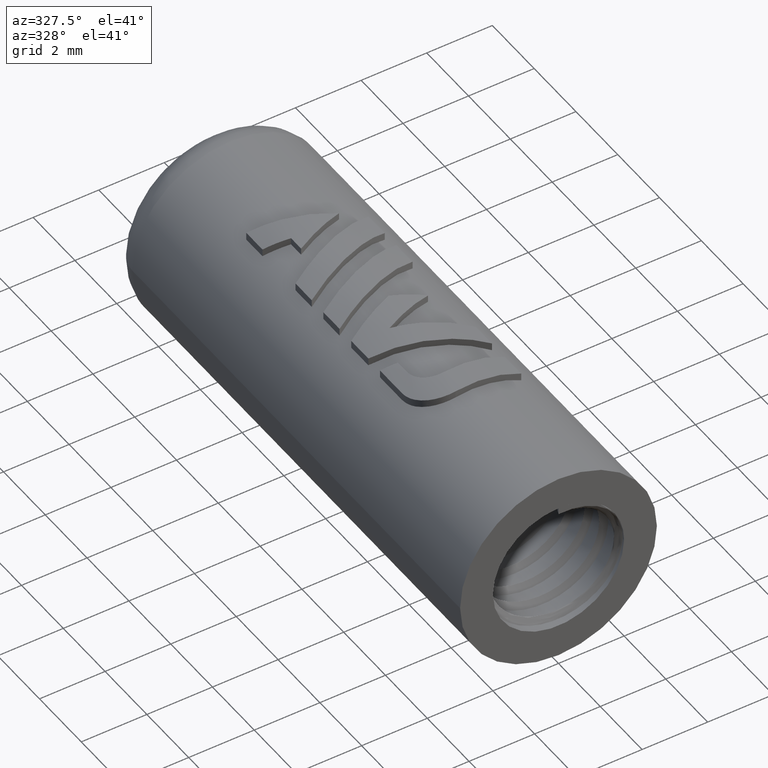
[diagram: clean part render]
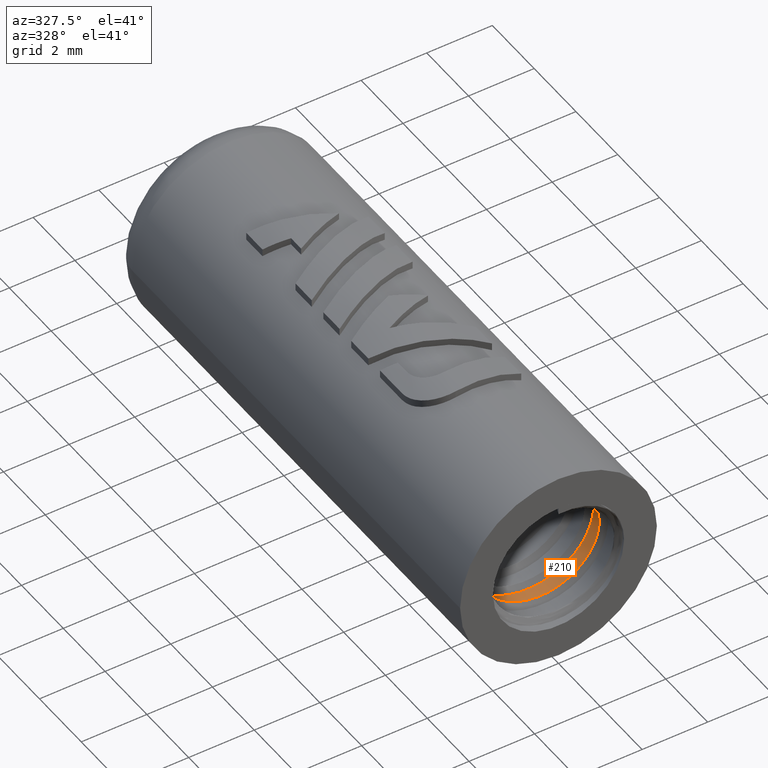
[diagram: same view with one face highlighted and labeled with its STEP entity id]
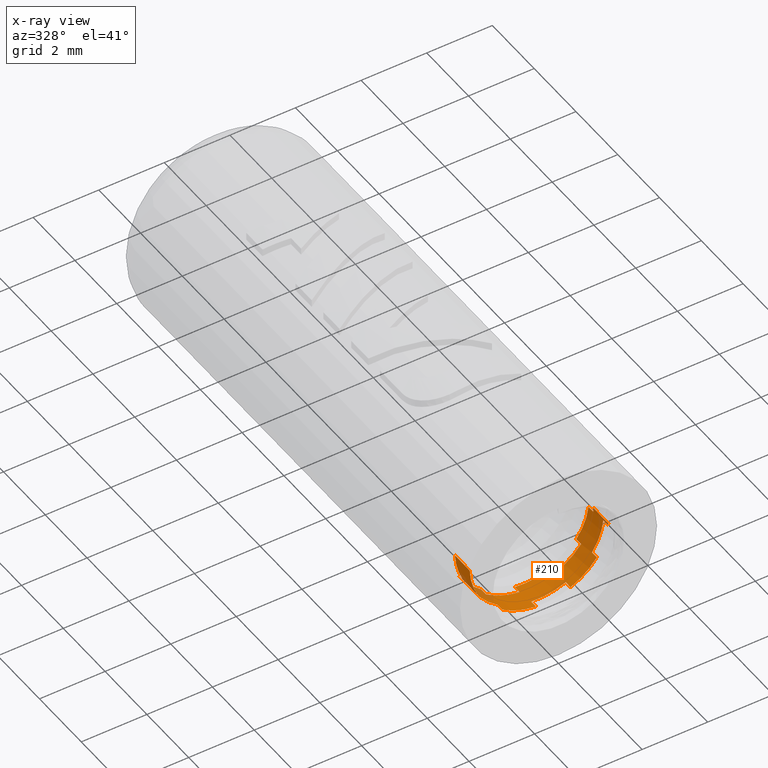
[diagram: x-ray of the same camera — body ghosted, the highlighted face saturated]
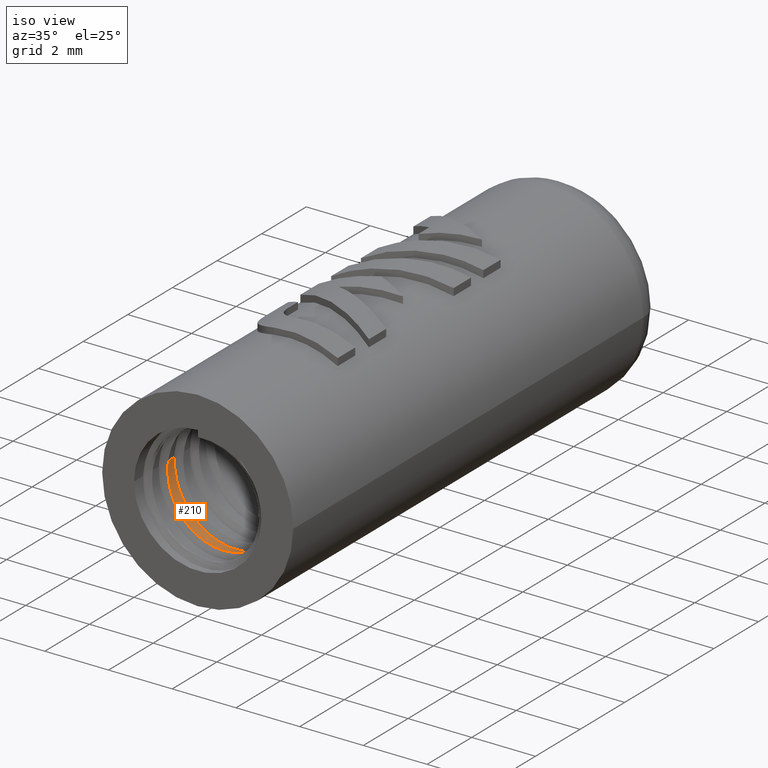
[diagram: same view with one face highlighted and labeled with its STEP entity id]
A machine part, auxiliary view. The second image highlights one B-rep face of the part: STEP entity #210.
The next image is the same camera in x-ray: the body ghosted, the highlighted face saturated — about 4% of this face is hidden behind the body in this view.
A second angle (iso view) of the same face is appended — the face is thin or edge-on in the first view.
In plain terms, the highlighted cylindrical surface (partial cylindrical patch) has radius 2 mm, axis along (-0, 1, 0).
Its self-contained STEP definition (entity closure, byte-faithful):
#210=ADVANCED_FACE('',(#702),#703,.F.);
#702=FACE_OUTER_BOUND('',#1508,.T.);
#703=CYLINDRICAL_SURFACE('',#1509,2.0);
#1508=EDGE_LOOP('',(#7086,#7087,#7088,#7089,#7090,#7091,#7092,#7093,#7094,#7095,#7096,#7097,#7098,#7099,#7100,#7101,#7102,#7103,#7104,#7105,#7106,#7107,#7108,#7109,#7110,#7111,#7112,#7113));
#1509=AXIS2_PLACEMENT_3D('',#7114,#7115,#7116);
#7086=ORIENTED_EDGE('',*,*,#9826,.F.);
#7087=ORIENTED_EDGE('',*,*,#9825,.T.);
#7088=ORIENTED_EDGE('',*,*,#9824,.F.);
#7089=ORIENTED_EDGE('',*,*,#9823,.F.);
#7090=ORIENTED_EDGE('',*,*,#9822,.T.);
#7091=ORIENTED_EDGE('',*,*,#9821,.T.);
#7092=ORIENTED_EDGE('',*,*,#9820,.F.);
#7093=ORIENTED_EDGE('',*,*,#9819,.F.);
#7094=ORIENTED_EDGE('',*,*,#9818,.T.);
#7095=ORIENTED_EDGE('',*,*,#9817,.T.);
#7096=ORIENTED_EDGE('',*,*,#9816,.F.);
#7097=ORIENTED_EDGE('',*,*,#9815,.F.);
#7098=ORIENTED_EDGE('',*,*,#9814,.T.);
#7099=ORIENTED_EDGE('',*,*,#9813,.T.);
#7100=ORIENTED_EDGE('',*,*,#9812,.F.);
#7101=ORIENTED_EDGE('',*,*,#9840,.F.);
#7102=ORIENTED_EDGE('',*,*,#9841,.F.);
#7103=ORIENTED_EDGE('',*,*,#9842,.T.);
#7104=ORIENTED_EDGE('',*,*,#9843,.T.);
#7105=ORIENTED_EDGE('',*,*,#9844,.F.);
#7106=ORIENTED_EDGE('',*,*,#9845,.F.);
#7107=ORIENTED_EDGE('',*,*,#9846,.T.);
#7108=ORIENTED_EDGE('',*,*,#9847,.T.);
#7109=ORIENTED_EDGE('',*,*,#9848,.F.);
#7110=ORIENTED_EDGE('',*,*,#9849,.F.);
#7111=ORIENTED_EDGE('',*,*,#9850,.T.);
#7112=ORIENTED_EDGE('',*,*,#9851,.T.);
#7113=ORIENTED_EDGE('',*,*,#9852,.F.);
#7114=CARTESIAN_POINT('',(0.0,0.0,0.0));
#7115=DIRECTION('',(-0.0,1.0,0.0));
#7116=DIRECTION('',(1.0,0.0,-6.12323399573677E-17));
#9812=EDGE_CURVE('',#12008,#11954,#12010,.T.);
#9813=EDGE_CURVE('',#12011,#11954,#12012,.T.);
#9814=EDGE_CURVE('',#12013,#12011,#12014,.T.);
#9815=EDGE_CURVE('',#12013,#12015,#12016,.T.);
#9816=EDGE_CURVE('',#12015,#12017,#12018,.T.);
#9817=EDGE_CURVE('',#12019,#12017,#12020,.T.);
#9818=EDGE_CURVE('',#12021,#12019,#12022,.T.);
#9819=EDGE_CURVE('',#12021,#12023,#12024,.T.);
#9820=EDGE_CURVE('',#12023,#12025,#12026,.T.);
#9821=EDGE_CURVE('',#12027,#12025,#12028,.T.);
#9822=EDGE_CURVE('',#12029,#12027,#12030,.T.);
#9823=EDGE_CURVE('',#12029,#12031,#12032,.T.);
#9824=EDGE_CURVE('',#12031,#12033,#12034,.T.);
#9825=EDGE_CURVE('',#11982,#12033,#12035,.T.);
#9826=EDGE_CURVE('',#11982,#12036,#12037,.T.);
#9840=EDGE_CURVE('',#12063,#12008,#12064,.T.);
#9841=EDGE_CURVE('',#12065,#12063,#12066,.T.);
#9842=EDGE_CURVE('',#12065,#12067,#12068,.T.);
#9843=EDGE_CURVE('',#12067,#12069,#12070,.T.);
#9844=EDGE_CURVE('',#12071,#12069,#12072,.T.);
#9845=EDGE_CURVE('',#12073,#12071,#12074,.T.);
#9846=EDGE_CURVE('',#12073,#12075,#12076,.T.);
#9847=EDGE_CURVE('',#12075,#12077,#12078,.T.);
#9848=EDGE_CURVE('',#12079,#12077,#12080,.T.);
#9849=EDGE_CURVE('',#12081,#12079,#12082,.T.);
#9850=EDGE_CURVE('',#12081,#12083,#12084,.T.);
#9851=EDGE_CURVE('',#12083,#12085,#12086,.T.);
#9852=EDGE_CURVE('',#12036,#12085,#12087,.T.);
#11954=VERTEX_POINT('',#15919);
#11982=VERTEX_POINT('',#15978);
#12008=VERTEX_POINT('',#16029);
#12010=LINE('',#16034,#16035);
#12011=VERTEX_POINT('',#16036);
#12012=B_SPLINE_CURVE_WITH_KNOTS('',3,(#16037,#16038,#16039,#16040),.UNSPECIFIED.,.F.,.F.,(4,4),(0.0,1.0),.UNSPECIFIED.);
#12013=VERTEX_POINT('',#16041);
#12014=LINE('',#16042,#16043);
#12015=VERTEX_POINT('',#16044);
#12016=B_SPLINE_CURVE_WITH_KNOTS('',3,(#16045,#16046,#16047,#16048),.UNSPECIFIED.,.F.,.F.,(4,4),(0.0,1.0),.UNSPECIFIED.);
#12017=VERTEX_POINT('',#16049);
#12018=LINE('',#16050,#16051);
#12019=VERTEX_POINT('',#16052);
#12020=B_SPLINE_CURVE_WITH_KNOTS('',3,(#16053,#16054,#16055,#16056),.UNSPECIFIED.,.F.,.F.,(4,4),(0.0,1.0),.UNSPECIFIED.);
#12021=VERTEX_POINT('',#16057);
#12022=LINE('',#16058,#16059);
#12023=VERTEX_POINT('',#16060);
#12024=B_SPLINE_CURVE_WITH_KNOTS('',3,(#16061,#16062,#16063,#16064),.UNSPECIFIED.,.F.,.F.,(4,4),(0.0,1.0),.UNSPECIFIED.);
#12025=VERTEX_POINT('',#16065);
#12026=LINE('',#16066,#16067);
#12027=VERTEX_POINT('',#16068);
#12028=B_SPLINE_CURVE_WITH_KNOTS('',3,(#16069,#16070,#16071,#16072),.UNSPECIFIED.,.F.,.F.,(4,4),(0.0,1.0),.UNSPECIFIED.);
#12029=VERTEX_POINT('',#16073);
#12030=LINE('',#16074,#16075);
#12031=VERTEX_POINT('',#16076);
#12032=B_SPLINE_CURVE_WITH_KNOTS('',3,(#16077,#16078,#16079,#16080),.UNSPECIFIED.,.F.,.F.,(4,4),(0.0,1.0),.UNSPECIFIED.);
#12033=VERTEX_POINT('',#16081);
#12034=LINE('',#16082,#16083);
#12035=B_SPLINE_CURVE_WITH_KNOTS('',3,(#16084,#16085,#16086,#16087),.UNSPECIFIED.,.F.,.F.,(4,4),(0.0,1.0),.UNSPECIFIED.);
#12036=VERTEX_POINT('',#16088);
#12037=LINE('',#16089,#16090);
#12063=VERTEX_POINT('',#16143);
#12064=B_SPLINE_CURVE_WITH_KNOTS('',3,(#16144,#16145,#16146,#16147),.UNSPECIFIED.,.F.,.F.,(4,4),(0.0,1.0),.UNSPECIFIED.);
#12065=VERTEX_POINT('',#16148);
#12066=LINE('',#16149,#16150);
#12067=VERTEX_POINT('',#16151);
#12068=B_SPLINE_CURVE_WITH_KNOTS('',3,(#16152,#16153,#16154,#16155),.UNSPECIFIED.,.F.,.F.,(4,4),(0.0,1.0),.UNSPECIFIED.);
#12069=VERTEX_POINT('',#16156);
#12070=LINE('',#16157,#16158);
#12071=VERTEX_POINT('',#16159);
#12072=B_SPLINE_CURVE_WITH_KNOTS('',3,(#16160,#16161,#16162,#16163),.UNSPECIFIED.,.F.,.F.,(4,4),(0.0,1.0),.UNSPECIFIED.);
#12073=VERTEX_POINT('',#16164);
#12074=LINE('',#16165,#16166);
#12075=VERTEX_POINT('',#16167);
#12076=B_SPLINE_CURVE_WITH_KNOTS('',3,(#16168,#16169,#16170,#16171),.UNSPECIFIED.,.F.,.F.,(4,4),(0.0,1.0),.UNSPECIFIED.);
#12077=VERTEX_POINT('',#16172);
#12078=LINE('',#16173,#16174);
#12079=VERTEX_POINT('',#16175);
#12080=B_SPLINE_CURVE_WITH_KNOTS('',3,(#16176,#16177,#16178,#16179),.UNSPECIFIED.,.F.,.F.,(4,4),(0.0,1.0),.UNSPECIFIED.);
#12081=VERTEX_POINT('',#16180);
#12082=LINE('',#16181,#16182);
#12083=VERTEX_POINT('',#16183);
#12084=B_SPLINE_CURVE_WITH_KNOTS('',3,(#16184,#16185,#16186,#16187),.UNSPECIFIED.,.F.,.F.,(4,4),(0.0,1.0),.UNSPECIFIED.);
#12085=VERTEX_POINT('',#16188);
#12086=LINE('',#16189,#16190);
#12087=B_SPLINE_CURVE_WITH_KNOTS('',3,(#16191,#16192,#16193,#16194),.UNSPECIFIED.,.F.,.F.,(4,4),(0.0,1.0),.UNSPECIFIED.);
#15919=CARTESIAN_POINT('',(-1.99989826058669,1.80952894795316,-1.34087110089378E-16));
#15978=CARTESIAN_POINT('',(1.99992759615948,1.45952914322296,6.81695181208305E-17));
#16029=CARTESIAN_POINT('',(-1.99995353280467,1.10952934415351,-1.58374930976674E-16));
#16034=CARTESIAN_POINT('',(-2.0,0.0,-1.22463677939047E-16));
#16035=VECTOR('',#20663,1.0);
#16036=CARTESIAN_POINT('',(-1.80328903440548,1.7597035573076,-0.86495587078467));
#16037=CARTESIAN_POINT('',(-1.8032890344028,1.7597035573076,-0.864955870783378));
#16038=CARTESIAN_POINT('',(-1.95494029638922,1.77923661575668,-0.548788229137354));
#16039=CARTESIAN_POINT('',(-2.02138650385463,1.79876967420576,-0.192241215457124));
#16040=CARTESIAN_POINT('',(-1.99380230939845,1.81830273265483,0.157328799135499));
#16041=CARTESIAN_POINT('',(-1.80328659595159,1.99064366491462,-0.864960954536825));
#16042=CARTESIAN_POINT('',(-1.80328659594879,0.0,-0.864960954535772));
#16043=VECTOR('',#20664,1000.0);
#16044=CARTESIAN_POINT('',(-1.12526937515997,1.93204448956741,-1.65341127168621));
#16045=CARTESIAN_POINT('',(-1.80328659594882,1.99064366491461,-0.864960954535711));
#16046=CARTESIAN_POINT('',(-1.65163444263663,1.97111060646553,-1.18112816865167));
#16047=CARTESIAN_POINT('',(-1.41515920006453,1.95157754801646,-1.45611967961387));
#16048=CARTESIAN_POINT('',(-1.12526937515779,1.93204448956738,-1.65341127168409));
#16049=CARTESIAN_POINT('',(-1.12527403638134,1.70110438196035,-1.65340809936868));
#16050=CARTESIAN_POINT('',(-1.12526937515782,0.0,-1.65341127168407));
#16051=VECTOR('',#20665,1000.0);
#16052=CARTESIAN_POINT('',(-0.143052102504712,1.64250520661315,-1.9948774639012));
#16053=CARTESIAN_POINT('',(-0.143052102504683,1.64250520661316,-1.99487746389822));
#16054=CARTESIAN_POINT('',(-0.492810622132247,1.66203826506223,-1.96979637871523));
#16055=CARTESIAN_POINT('',(-0.835384767670691,1.68157132351131,-1.85070050868038));
#16056=CARTESIAN_POINT('',(-1.12527403638015,1.70110438196038,-1.65340809936589));
#16057=CARTESIAN_POINT('',(-0.143046478630556,1.87344531422017,-1.99487786717967));
#16058=CARTESIAN_POINT('',(-0.143046478630325,0.0,-1.9948778671767));
#16059=VECTOR('',#20666,1000.0);
#16060=CARTESIAN_POINT('',(0.877847647786606,1.81484613887299,-1.79704855451584));
#16061=CARTESIAN_POINT('',(-0.143046478630332,1.87344531422017,-1.9948778671767));
#16062=CARTESIAN_POINT('',(0.206712111703321,1.8539122557711,-2.01995796633522));
#16063=CARTESIAN_POINT('',(0.562774139011441,1.83437919732202,-1.95096011013704));
#16064=CARTESIAN_POINT('',(0.87784764778575,1.81484613887295,-1.79704855451293));
#16065=CARTESIAN_POINT('',(0.87784258162031,1.58390603126597,-1.79705102929942));
#16066=CARTESIAN_POINT('',(0.877847647785736,0.0,-1.79704855451294));
#16067=VECTOR('',#20667,1000.0);
#16068=CARTESIAN_POINT('',(1.66142102696181,1.52530685591871,-1.11340925592574));
#16069=CARTESIAN_POINT('',(1.66142102695915,1.52530685591872,-1.11340925592434));
#16070=CARTESIAN_POINT('',(1.46620884970047,1.5448399143678,-1.4047034177883));
#16071=CARTESIAN_POINT('',(1.19291652429339,1.56437297281688,-1.64314036191491));
#16072=CARTESIAN_POINT('',(0.877842581619261,1.58390603126596,-1.79705102929662));
#16073=CARTESIAN_POINT('',(1.66142416583117,1.75624696352572,-1.1134045721139));
#16074=CARTESIAN_POINT('',(1.66142416582865,0.0,-1.11340457211231));
#16075=VECTOR('',#20668,1000.0);
#16076=CARTESIAN_POINT('',(1.99585075390292,1.69764778817853,-0.128762448551809));
#16077=CARTESIAN_POINT('',(1.66142416582864,1.75624696352573,-1.11340457211231));
#16078=CARTESIAN_POINT('',(1.85663552188233,1.73671390507666,-0.82210985991576));
#16079=CARTESIAN_POINT('',(1.97327504977583,1.71718084662758,-0.478691613482192));
#16080=CARTESIAN_POINT('',(1.99585075389997,1.69764778817851,-0.128762448551211));
#16081=CARTESIAN_POINT('',(1.99585039089339,1.46670768057152,-0.128768075168697));
#16082=CARTESIAN_POINT('',(1.99585075389998,0.0,-0.128762448551111));
#16083=VECTOR('',#20669,1000.0);
#16084=CARTESIAN_POINT('',(1.79072093429945,1.40810850522428,0.890684307407342));
#16085=CARTESIAN_POINT('',(1.94688311992342,1.42764156367336,0.576720209671301));
#16086=CARTESIAN_POINT('',(2.01842708151991,1.44717462212243,0.221161026116888));
#16087=CARTESIAN_POINT('',(1.99585039089042,1.46670768057151,-0.128768075168331));
#16088=CARTESIAN_POINT('',(1.99997489754528,0.759529532239087,1.34090458395217E-16));
#16089=CARTESIAN_POINT('',(2.0,0.0,1.22465681890423E-16));
#16090=VECTOR('',#20670,1.0);
#16143=CARTESIAN_POINT('',(-1.7777857768824,1.05651345314108,-0.916230173879117));
#16144=CARTESIAN_POINT('',(-1.77778577687962,1.05651345314106,-0.916230173878003));
#16145=CARTESIAN_POINT('',(-1.93842687642199,1.07604651159009,-0.604533975596346));
#16146=CARTESIAN_POINT('',(-2.01505392725417,1.09557957003911,-0.250035503764902));
#16147=CARTESIAN_POINT('',(-1.99748936816285,1.11511262848814,0.100180956655429));
#16148=CARTESIAN_POINT('',(-1.77778319387893,1.28745356074818,-0.916235185732119));
#16149=CARTESIAN_POINT('',(-1.77778319387606,0.0,-0.916235185731186));
#16150=VECTOR('',#20677,1000.0);
#16151=CARTESIAN_POINT('',(-1.07747027106155,1.22885438540023,-1.68495038947456));
#16152=CARTESIAN_POINT('',(-1.77778319387605,1.28745356074815,-0.916235185731196));
#16153=CARTESIAN_POINT('',(-1.61714121561156,1.26792050229884,-1.22793093114365));
#16154=CARTESIAN_POINT('',(-1.3728897965897,1.24838744384954,-1.49603933414495));
#16155=CARTESIAN_POINT('',(-1.07747027106003,1.22885438540023,-1.684950389472));
#16156=CARTESIAN_POINT('',(-1.0774750212011,0.99791427779344,-1.68494735190735));
#16157=CARTESIAN_POINT('',(-1.0774702710601,0.0,-1.68495038947195));
#16158=VECTOR('',#20678,1000.0);
#16159=CARTESIAN_POINT('',(-0.0858793304255649,0.939315102446395,-1.99815533445666));
#16160=CARTESIAN_POINT('',(-0.0858793304252904,0.939315102446387,-1.99815533445368));
#16161=CARTESIAN_POINT('',(-0.436212553598325,0.958848160895411,-1.98309825550038));
#16162=CARTESIAN_POINT('',(-0.782056028245947,0.978381219344435,-1.87385924006303));
#16163=CARTESIAN_POINT('',(-1.07747502119978,0.997914277793459,-1.68494735190466));
#16164=CARTESIAN_POINT('',(-0.0858736973188465,1.17025521005386,-1.99815557655572));
#16165=CARTESIAN_POINT('',(-0.085873697318309,0.0,-1.99815557655276));
#16166=VECTOR('',#20679,1000.0);
#16167=CARTESIAN_POINT('',(0.928937998633095,1.11165603471071,-1.77117875854118));
#16168=CARTESIAN_POINT('',(-0.085873697318325,1.17025521005384,-1.99815557655276));
#16169=CARTESIAN_POINT('',(0.264459568277905,1.15072215160613,-2.01321166786185));
#16170=CARTESIAN_POINT('',(0.618400197814244,1.13118909315843,-1.9340478996685));
#16171=CARTESIAN_POINT('',(0.928937998631542,1.11165603471072,-1.77117875853863));
#16172=CARTESIAN_POINT('',(0.928933005396887,0.880715927103741,-1.771181377357));
#16173=CARTESIAN_POINT('',(0.928937998631531,0.0,-1.77117875853863));
#16174=VECTOR('',#20680,1000.0);
#16175=CARTESIAN_POINT('',(1.69261730164331,0.822116751723959,-1.06538569081326));
#16176=CARTESIAN_POINT('',(1.69261730164081,0.822116751723956,-1.06538569081164));
#16177=CARTESIAN_POINT('',(1.50582501539698,0.841649810183892,-1.36214944335321));
#16178=CARTESIAN_POINT('',(1.23947126555942,0.861182868643827,-1.60831311157849));
#16179=CARTESIAN_POINT('',(0.928933005395155,0.880715927103763,-1.77118137735454));
#16180=CARTESIAN_POINT('',(1.69262030516987,1.05305685932643,-1.06538091898558));
#16181=CARTESIAN_POINT('',(1.69262030516752,0.0,-1.06538091898372));
#16182=VECTOR('',#20681,1000.0);
#16183=CARTESIAN_POINT('',(1.99871910693959,0.994457684158533,-0.0715676712387294));
#16184=CARTESIAN_POINT('',(1.69262030516752,1.05305685932641,-1.06538091898374));
#16185=CARTESIAN_POINT('',(1.87941175409951,1.03352380093713,-0.768616640911678));
#16186=CARTESIAN_POINT('',(1.98617126722106,1.01399074254784,-0.421999738624617));
#16187=CARTESIAN_POINT('',(1.9987191069366,0.994457684158549,-0.0715676712389169));
#16188=CARTESIAN_POINT('',(1.99871890518758,0.763517576525863,-0.0715733054825647));
#16189=CARTESIAN_POINT('',(1.9987191069366,0.0,-0.0715676712388832));
#16190=VECTOR('',#20682,1000.0);
#16191=CARTESIAN_POINT('',(1.76448621021845,0.704918400662633,0.941588240128852));
#16192=CARTESIAN_POINT('',(1.92957329843548,0.724451459283688,0.6322238298382));
#16193=CARTESIAN_POINT('',(2.01126773289128,0.743984517904743,0.278858730687847));
#16194=CARTESIAN_POINT('',(1.99871890518464,0.763517576525798,-0.0715733054812957));
#20663=DIRECTION('',(-0.0,1.0,-0.0));
#20664=DIRECTION('',(0.0,-1.0,0.0));
#20665=DIRECTION('',(0.0,-1.0,0.0));
#20666=DIRECTION('',(0.0,-1.0,0.0));
#20667=DIRECTION('',(0.0,-1.0,0.0));
#20668=DIRECTION('',(0.0,-1.0,0.0));
#20669=DIRECTION('',(0.0,-1.0,0.0));
#20670=DIRECTION('',(0.0,-1.0,0.0));
#20677=DIRECTION('',(0.0,-1.0,0.0));
#20678=DIRECTION('',(0.0,-1.0,0.0));
#20679=DIRECTION('',(0.0,-1.0,0.0));
#20680=DIRECTION('',(0.0,-1.0,0.0));
#20681=DIRECTION('',(0.0,-1.0,0.0));
#20682=DIRECTION('',(0.0,-1.0,0.0));